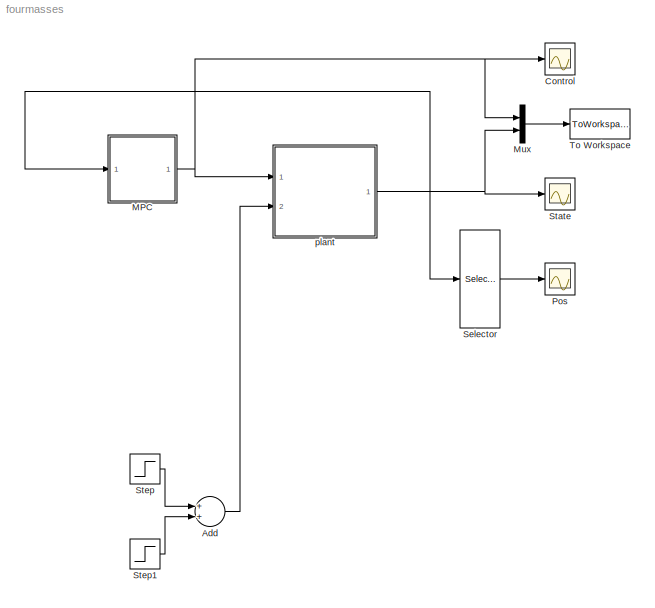
MODEL fourmasses
KIND model
BLOCK [Sum] Add
  InputSameDT = off
  OutDataTypeStr = Inherit: Inherit via internal rule
  Ports = [2, 1]
  SID = 215
  SaturateOnIntegerOverflow = off
BLOCK [Scope] Control
  DataFormat = StructureWithTime
  Floating = off
  NumInputPorts = 1
  Ports = [1]
  SID = 132
  SampleTime = 0
  SaveName = ScopeData1
  ShowLegends = off
  TimeRange = 60
  YMax = 0.5
  YMin = -0.5
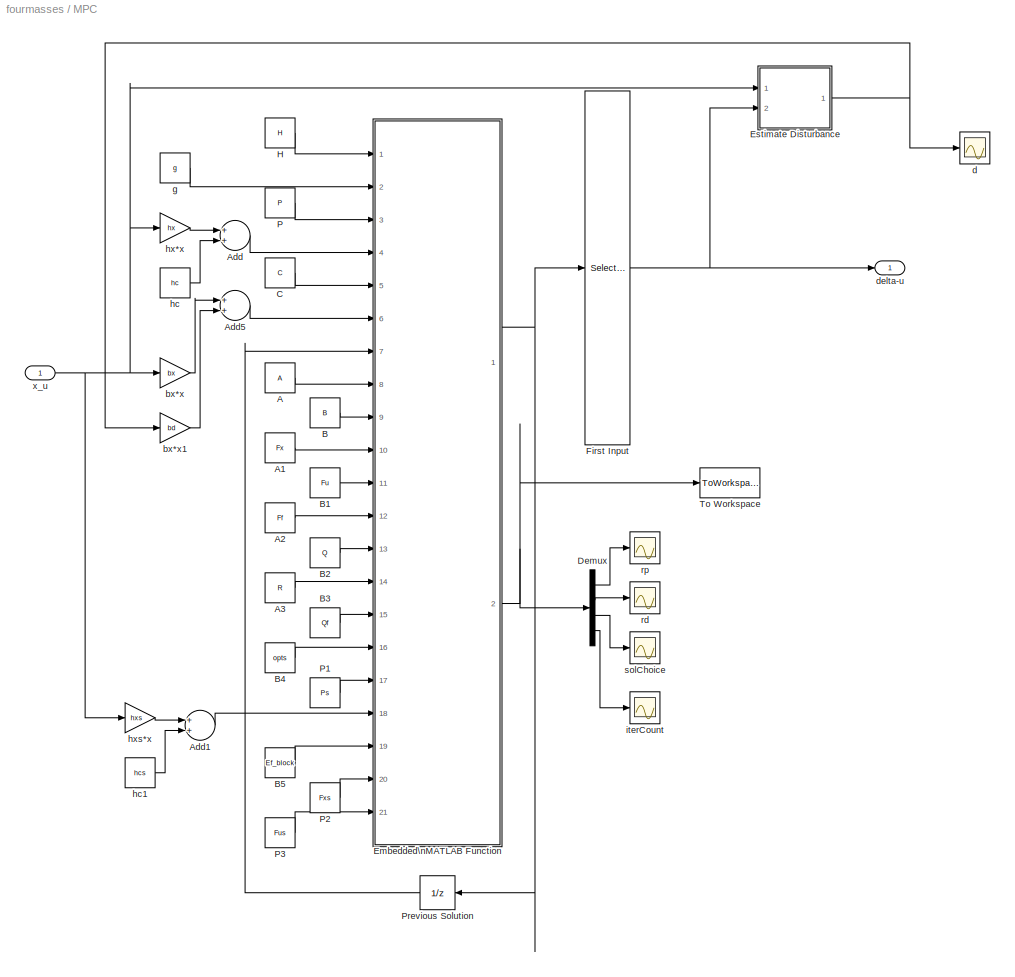
BLOCK [SubSystem] MPC
  FunctionWithSeparateData = off
  MaskHideContents = off
  MinAlgLoopOccurrences = off
  Opaque = off
  Ports = [1, 1]
  PropExecContextOutsideSubsystem = off
  RTWFcnNameOpts = Use subsystem name
  RTWFileNameOpts = Use subsystem name
  RTWSystemCode = Function
  RequestExecContextInheritance = off
  SID = 138
  SystemSampleTime = dt
  TreatAsAtomicUnit = on
BLOCK [Constant] MPC/A
  SID = 141
  Value = A
BLOCK [Constant] MPC/A1
  SID = 142
  Value = Fx
BLOCK [Constant] MPC/A2
  SID = 143
  Value = Ff
  VectorParams1D = off
BLOCK [Constant] MPC/A3
  SID = 144
  Value = R
BLOCK [Sum] MPC/Add
  InputSameDT = off
  OutDataTypeStr = Inherit: Inherit via internal rule
  Ports = [2, 1]
  SID = 145
  SaturateOnIntegerOverflow = off
BLOCK [Sum] MPC/Add1
  InputSameDT = off
  OutDataTypeStr = Inherit: Inherit via internal rule
  Ports = [2, 1]
  SID = 146
  SaturateOnIntegerOverflow = off
BLOCK [Sum] MPC/Add5
  InputSameDT = off
  OutDataTypeStr = Inherit: Inherit via internal rule
  Ports = [2, 1]
  SID = 148
  SaturateOnIntegerOverflow = off
BLOCK [Constant] MPC/B
  SID = 149
  Value = B
BLOCK [Constant] MPC/B1
  SID = 150
  Value = Fu
BLOCK [Constant] MPC/B2
  SID = 151
  Value = Q
BLOCK [Constant] MPC/B3
  SID = 152
  Value = Qf
BLOCK [Constant] MPC/B4
  SID = 153
  Value = opts
BLOCK [Constant] MPC/B5
  SID = 154
  Value = Ef_block
BLOCK [Constant] MPC/C
  SID = 155
  Value = C
BLOCK [Demux] MPC/Demux
  DisplayOption = bar
  Ports = [1, 4]
  SID = 172
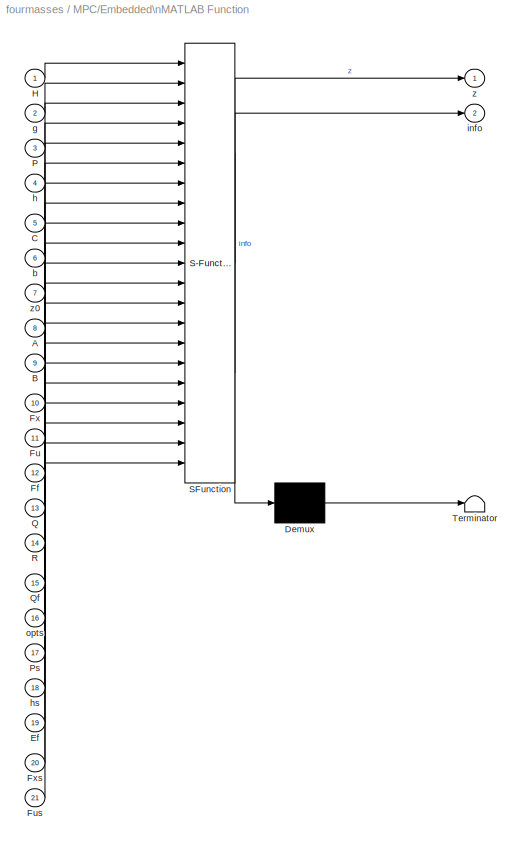
BLOCK [SubSystem] MPC/Embedded\nMATLAB Function
  ErrorFcn = Stateflow.Translate.translate
  FunctionWithSeparateData = off
  MaskHideContents = off
  MinAlgLoopOccurrences = off
  Opaque = off
  PermitHierarchicalResolution = ExplicitOnly
  Ports = [21, 2]
  PropExecContextOutsideSubsystem = off
  RTWFileNameOpts = Use subsystem name
  RTWSystemCode = Auto
  RequestExecContextInheritance = off
  SFBlockType = MATLAB Function
  SID = 173
  TreatAsAtomicUnit = on
BLOCK [Demux] MPC/Embedded\nMATLAB Function/ Demux 
  Outputs = 1
  Ports = [1, 1]
  SID = 173::36
BLOCK [S-Function] MPC/Embedded\nMATLAB Function/ SFunction 
  EnableBusSupport = on
  FunctionName = sf_sfun
  PortCounts = [21 3]
  Ports = [21, 3]
  SID = 173::35
  Tag = Stateflow S-Function fourmasses 2
BLOCK [Terminator] MPC/Embedded\nMATLAB Function/ Terminator 
  SID = 173::37
BLOCK [Inport] MPC/Embedded\nMATLAB Function/A
  IconDisplay = Port number
  Port = 8
  SID = 173::17
BLOCK [Inport] MPC/Embedded\nMATLAB Function/B
  IconDisplay = Port number
  Port = 9
  SID = 173::22
BLOCK [Inport] MPC/Embedded\nMATLAB Function/C
  IconDisplay = Port number
  Port = 5
  SID = 173::13
BLOCK [Inport] MPC/Embedded\nMATLAB Function/Ef
  IconDisplay = Port number
  Port = 19
  SID = 173::33
BLOCK [Inport] MPC/Embedded\nMATLAB Function/Ff
  IconDisplay = Port number
  Port = 12
  SID = 173::25
BLOCK [Inport] MPC/Embedded\nMATLAB Function/Fu
  IconDisplay = Port number
  Port = 11
  SID = 173::24
BLOCK [Inport] MPC/Embedded\nMATLAB Function/Fus
  IconDisplay = Port number
  Port = 21
  SID = 173::38
BLOCK [Inport] MPC/Embedded\nMATLAB Function/Fx
  IconDisplay = Port number
  Port = 10
  SID = 173::23
BLOCK [Inport] MPC/Embedded\nMATLAB Function/Fxs
  IconDisplay = Port number
  Port = 20
  SID = 173::34
BLOCK [Inport] MPC/Embedded\nMATLAB Function/H
  IconDisplay = Port number
  SID = 173::1
BLOCK [Inport] MPC/Embedded\nMATLAB Function/P
  IconDisplay = Port number
  Port = 3
  SID = 173::11
BLOCK [Inport] MPC/Embedded\nMATLAB Function/Ps
  IconDisplay = Port number
  Port = 17
  SID = 173::31
BLOCK [Inport] MPC/Embedded\nMATLAB Function/Q
  IconDisplay = Port number
  Port = 13
  SID = 173::26
BLOCK [Inport] MPC/Embedded\nMATLAB Function/Qf
  IconDisplay = Port number
  Port = 15
  SID = 173::28
BLOCK [Inport] MPC/Embedded\nMATLAB Function/R
  IconDisplay = Port number
  Port = 14
  SID = 173::27
BLOCK [Inport] MPC/Embedded\nMATLAB Function/b
  IconDisplay = Port number
  Port = 6
  SID = 173::14
BLOCK [Inport] MPC/Embedded\nMATLAB Function/g
  IconDisplay = Port number
  Port = 2
  SID = 173::10
BLOCK [Inport] MPC/Embedded\nMATLAB Function/h
  IconDisplay = Port number
  Port = 4
  SID = 173::12
BLOCK [Inport] MPC/Embedded\nMATLAB Function/hs
  IconDisplay = Port number
  Port = 18
  SID = 173::32
BLOCK [Outport] MPC/Embedded\nMATLAB Function/info
  IconDisplay = Port number
  Port = 2
  SID = 173::29
BLOCK [Inport] MPC/Embedded\nMATLAB Function/opts
  IconDisplay = Port number
  Port = 16
  SID = 173::30
BLOCK [Outport] MPC/Embedded\nMATLAB Function/z
  IconDisplay = Port number
  SID = 173::5
BLOCK [Inport] MPC/Embedded\nMATLAB Function/z0
  IconDisplay = Port number
  Port = 7
  SID = 173::15
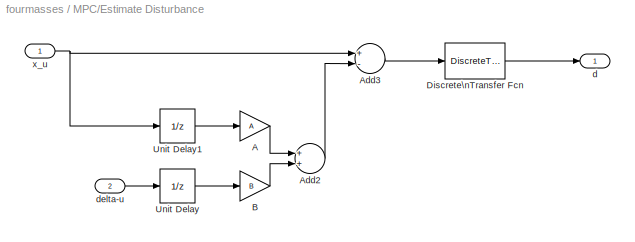
BLOCK [SubSystem] MPC/Estimate Disturbance
  FunctionWithSeparateData = off
  MaskHideContents = off
  MinAlgLoopOccurrences = off
  Opaque = off
  Ports = [2, 1]
  PropExecContextOutsideSubsystem = off
  RTWSystemCode = Auto
  RequestExecContextInheritance = off
  SID = 174
BLOCK [Gain] MPC/Estimate Disturbance/A
  Gain = A
  Multiplication = Matrix(K*u)
  OutDataTypeStr = Inherit: Inherit via internal rule
  ParamDataTypeStr = Inherit: Inherit via internal rule
  SID = 177
  SaturateOnIntegerOverflow = off
BLOCK [Sum] MPC/Estimate Disturbance/Add2
  InputSameDT = off
  OutDataTypeStr = Inherit: Inherit via internal rule
  Ports = [2, 1]
  SID = 178
  SaturateOnIntegerOverflow = off
BLOCK [Sum] MPC/Estimate Disturbance/Add3
  InputSameDT = off
  Inputs = +-
  OutDataTypeStr = Inherit: Inherit via internal rule
  Ports = [2, 1]
  SID = 179
  SaturateOnIntegerOverflow = off
BLOCK [Gain] MPC/Estimate Disturbance/B
  Gain = B
  Multiplication = Matrix(K*u)
  OutDataTypeStr = Inherit: Inherit via internal rule
  ParamDataTypeStr = Inherit: Inherit via internal rule
  SID = 180
  SaturateOnIntegerOverflow = off
BLOCK [DiscreteTransferFcn] MPC/Estimate Disturbance/Discrete\nTransfer Fcn
  Denominator = [1 -0.5]
  InputPortMap = u0
  Numerator = [0.5]
  Ports = [1, 1]
  SID = 181
BLOCK [UnitDelay] MPC/Estimate Disturbance/Unit Delay
  InputProcessing = Elements as channels (sample based)
  SID = 182
  SampleTime = -1
BLOCK [UnitDelay] MPC/Estimate Disturbance/Unit Delay1
  InputProcessing = Elements as channels (sample based)
  SID = 183
  SampleTime = -1
BLOCK [Outport] MPC/Estimate Disturbance/d
  IconDisplay = Port number
  SID = 184
BLOCK [Inport] MPC/Estimate Disturbance/delta-u
  IconDisplay = Port number
  Port = 2
  SID = 176
BLOCK [Inport] MPC/Estimate Disturbance/x_u
  IconDisplay = Port number
  SID = 175
BLOCK [Selector] MPC/First Input
  IndexOptions = Index vector (dialog)
  Indices = 1:2
  InputPortWidth = T*(n+m)
  OutputSizes = 1
  Ports = [1, 1]
  SID = 185
BLOCK [Constant] MPC/H
  SID = 186
  Value = H
BLOCK [Constant] MPC/P
  SID = 188
  Value = P
BLOCK [Constant] MPC/P1
  SID = 189
  Value = Ps
BLOCK [Constant] MPC/P2
  SID = 190
  Value = Fxs
BLOCK [Constant] MPC/P3
  SID = 191
  Value = Fus
BLOCK [UnitDelay] MPC/Previous Solution
  SID = 192
  SampleTime = -1
BLOCK [ToWorkspace] MPC/To Workspace
  MaxDataPoints = inf
  Ports = [1]
  SID = 193
  SampleTime = -1
  VariableName = info_out
BLOCK [Gain] MPC/bx*x
  Gain = bx
  Multiplication = Matrix(K*u)
  OutDataTypeStr = Inherit: Inherit via internal rule
  ParamDataTypeStr = Inherit: Inherit via internal rule
  SID = 194
  SaturateOnIntegerOverflow = off
BLOCK [Gain] MPC/bx*x1
  Gain = bd
  Multiplication = Matrix(K*u)
  OutDataTypeStr = Inherit: Inherit via internal rule
  ParamDataTypeStr = Inherit: Inherit via internal rule
  SID = 195
  SaturateOnIntegerOverflow = off
BLOCK [Scope] MPC/d
  DataFormat = StructureWithTime
  Floating = off
  NumInputPorts = 1
  Ports = [1]
  SID = 198
  SampleTime = 0
  SaveName = ScopeData6
  ShowLegends = off
  YMax = 0.25
  YMin = -0.025
  ZoomMode = yonly
BLOCK [Outport] MPC/delta-u
  IconDisplay = Port number
  SID = 210
BLOCK [Constant] MPC/g
  SID = 199
  Value = g
BLOCK [Constant] MPC/hc
  SID = 200
  Value = hc
BLOCK [Constant] MPC/hc1
  SID = 201
  Value = hcs
BLOCK [Gain] MPC/hx*x
  Gain = hx
  Multiplication = Matrix(K*u)
  OutDataTypeStr = Inherit: Inherit via internal rule
  ParamDataTypeStr = Inherit: Inherit via internal rule
  SID = 202
  SaturateOnIntegerOverflow = off
BLOCK [Gain] MPC/hxs*x
  Gain = hxs
  Multiplication = Matrix(K*u)
  OutDataTypeStr = Inherit: Inherit via internal rule
  ParamDataTypeStr = Inherit: Inherit via internal rule
  SID = 204
  SaturateOnIntegerOverflow = off
BLOCK [Scope] MPC/iterCount
  DataFormat = StructureWithTime
  Floating = off
  NumInputPorts = 1
  Ports = [1]
  SID = 205
  SampleTime = 0
  SaveName = ScopeData9
  ShowLegends = off
  TimeRange = 60
  YMax = 30
  YMin = 2.5
  ZoomMode = xonly
BLOCK [Scope] MPC/rd
  DataFormat = StructureWithTime
  Floating = off
  NumInputPorts = 1
  Ports = [1]
  SID = 206
  SampleTime = 0
  SaveName = ScopeData4
  ShowLegends = off
  YMax = 375
  YMin = 0
BLOCK [Scope] MPC/rp
  DataFormat = StructureWithTime
  Floating = off
  NumInputPorts = 1
  Ports = [1]
  SID = 207
  SampleTime = 0
  SaveName = ScopeData3
  ShowLegends = off
  YMax = 0.65
  YMin = -0.05
BLOCK [Scope] MPC/solChoice
  DataFormat = StructureWithTime
  Floating = off
  NumInputPorts = 1
  Ports = [1]
  SID = 208
  SampleTime = 0
  SaveName = ScopeData5
  ShowLegends = off
  YMax = 1.05
  YMin = 0.95
  ZoomMode = xonly
BLOCK [Inport] MPC/x_u
  IconDisplay = Port number
  SID = 139
BLOCK [Mux] Mux
  DisplayOption = bar
  Inputs = 2
  Ports = [2, 1]
  SID = 216
BLOCK [Scope] Pos
  DataFormat = StructureWithTime
  Floating = off
  NumInputPorts = 1
  Ports = [1]
  SID = 136
  SampleTime = 0
  SaveName = ScopeData2
  ShowLegends = off
  YMax = 0.8
  YMin = -0.7
  ZoomMode = yonly
BLOCK [Selector] Selector
  IndexOptions = Index vector (dialog)
  Indices = [1:4]
  InputPortWidth = 8
  OutputSizes = 1
  Ports = [1, 1]
  SID = 135
BLOCK [Scope] State
  DataFormat = StructureWithTime
  Floating = off
  NumInputPorts = 1
  Ports = [1]
  SID = 46
  SampleTime = 0
  ShowLegends = off
  YMax = 0.8
  YMin = -0.7
BLOCK [Step] Step
  After = [0.5;0;0;0]
  Before = zeros(4,1)
  SID = 137
  SampleTime = 0
  Time = 10
BLOCK [Step] Step1
  After = -[0.5;0;0;0]
  Before = zeros(4,1)
  SID = 214
  SampleTime = 0
  Time = 30
BLOCK [ToWorkspace] To Workspace
  MaxDataPoints = inf
  Ports = [1]
  SID = 217
  SampleTime = -1
  VariableName = simout
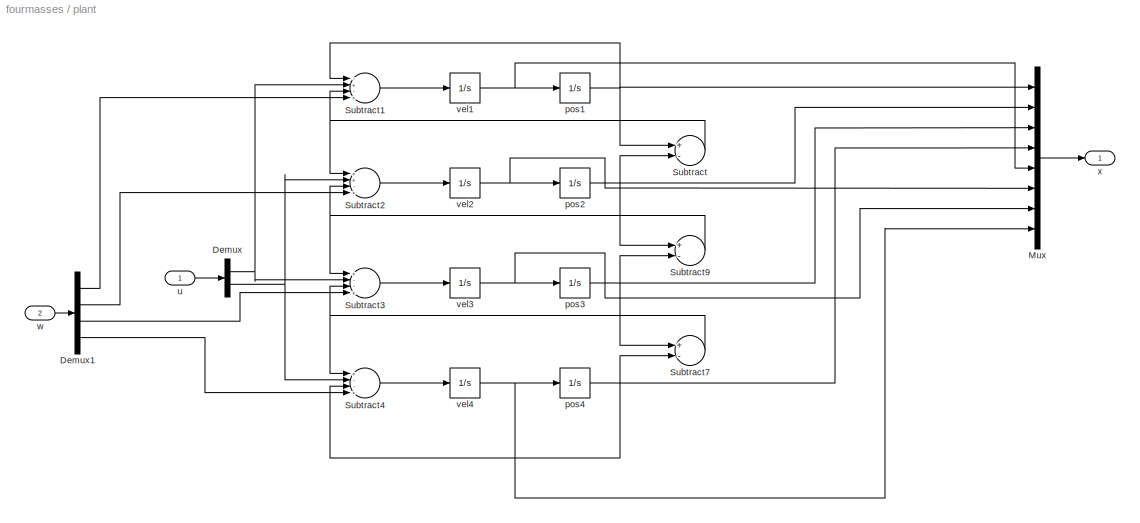
BLOCK [SubSystem] plant
  FunctionWithSeparateData = off
  MaskHideContents = off
  MinAlgLoopOccurrences = off
  Opaque = off
  Ports = [2, 1]
  PropExecContextOutsideSubsystem = off
  RTWSystemCode = Auto
  RequestExecContextInheritance = off
  SID = 26
BLOCK [Demux] plant/Demux
  DisplayOption = bar
  Outputs = 2
  Ports = [1, 2]
  SID = 37
BLOCK [Demux] plant/Demux1
  DisplayOption = bar
  Ports = [1, 4]
  SID = 48
BLOCK [Mux] plant/Mux
  DisplayOption = bar
  Inputs = 8
  Ports = [8, 1]
  SID = 39
BLOCK [Sum] plant/Subtract
  InputSameDT = off
  Inputs = +-
  OutDataTypeStr = Inherit: Inherit via internal rule
  Ports = [2, 1]
  SID = 13
  SaturateOnIntegerOverflow = off
BLOCK [Sum] plant/Subtract1
  InputSameDT = off
  Inputs = -+-+
  OutDataTypeStr = Inherit: Inherit via internal rule
  Ports = [4, 1]
  SID = 14
  SaturateOnIntegerOverflow = off
BLOCK [Sum] plant/Subtract2
  InputSameDT = off
  Inputs = ++-+
  OutDataTypeStr = Inherit: Inherit via internal rule
  Ports = [4, 1]
  SID = 15
  SaturateOnIntegerOverflow = off
BLOCK [Sum] plant/Subtract3
  InputSameDT = off
  Inputs = +--+
  OutDataTypeStr = Inherit: Inherit via internal rule
  Ports = [4, 1]
  SID = 16
  SaturateOnIntegerOverflow = off
BLOCK [Sum] plant/Subtract4
  InputSameDT = off
  Inputs = +--+
  OutDataTypeStr = Inherit: Inherit via internal rule
  Ports = [4, 1]
  SID = 17
  SaturateOnIntegerOverflow = off
BLOCK [Sum] plant/Subtract7
  InputSameDT = off
  Inputs = +-
  OutDataTypeStr = Inherit: Inherit via internal rule
  Ports = [2, 1]
  SID = 20
  SaturateOnIntegerOverflow = off
BLOCK [Sum] plant/Subtract9
  InputSameDT = off
  Inputs = +-
  OutDataTypeStr = Inherit: Inherit via internal rule
  Ports = [2, 1]
  SID = 22
  SaturateOnIntegerOverflow = off
BLOCK [Integrator] plant/pos1
  Ports = [1, 1]
  SID = 1
BLOCK [Integrator] plant/pos2
  Ports = [1, 1]
  SID = 3
BLOCK [Integrator] plant/pos3
  Ports = [1, 1]
  SID = 5
BLOCK [Integrator] plant/pos4
  Ports = [1, 1]
  SID = 7
BLOCK [Inport] plant/u
  IconDisplay = Port number
  SID = 38
BLOCK [Integrator] plant/vel1
  Ports = [1, 1]
  SID = 2
BLOCK [Integrator] plant/vel2
  Ports = [1, 1]
  SID = 4
BLOCK [Integrator] plant/vel3
  Ports = [1, 1]
  SID = 6
BLOCK [Integrator] plant/vel4
  Ports = [1, 1]
  SID = 8
BLOCK [Inport] plant/w
  IconDisplay = Port number
  Port = 2
  SID = 49
BLOCK [Outport] plant/x
  IconDisplay = Port number
  SID = 40
LINE Add:1 -> plant:2
LINE MPC/A1:1 -> MPC/Embedded\nMATLAB Function:10
LINE MPC/A2:1 -> MPC/Embedded\nMATLAB Function:12
LINE MPC/A3:1 -> MPC/Embedded\nMATLAB Function:14
LINE MPC/A:1 -> MPC/Embedded\nMATLAB Function:8
LINE MPC/Add1:1 -> MPC/Embedded\nMATLAB Function:18
LINE MPC/Add5:1 -> MPC/Embedded\nMATLAB Function:6
LINE MPC/Add:1 -> MPC/Embedded\nMATLAB Function:4
LINE MPC/B1:1 -> MPC/Embedded\nMATLAB Function:11
LINE MPC/B2:1 -> MPC/Embedded\nMATLAB Function:13
LINE MPC/B3:1 -> MPC/Embedded\nMATLAB Function:15
LINE MPC/B4:1 -> MPC/Embedded\nMATLAB Function:16
LINE MPC/B5:1 -> MPC/Embedded\nMATLAB Function:19
LINE MPC/B:1 -> MPC/Embedded\nMATLAB Function:9
LINE MPC/C:1 -> MPC/Embedded\nMATLAB Function:5
LINE MPC/Demux:1 -> MPC/rp:1
LINE MPC/Demux:2 -> MPC/rd:1
LINE MPC/Demux:3 -> MPC/solChoice:1
LINE MPC/Demux:4 -> MPC/iterCount:1
LINE MPC/Embedded\nMATLAB Function/ Demux :1 -> MPC/Embedded\nMATLAB Function/ Terminator :1
LINE MPC/Embedded\nMATLAB Function/ SFunction :1 -> MPC/Embedded\nMATLAB Function/ Demux :1
LINE MPC/Embedded\nMATLAB Function/ SFunction :2 -> MPC/Embedded\nMATLAB Function/z:1
LINE MPC/Embedded\nMATLAB Function/ SFunction :3 -> MPC/Embedded\nMATLAB Function/info:1
LINE MPC/Embedded\nMATLAB Function/A:1 -> MPC/Embedded\nMATLAB Function/ SFunction :8
LINE MPC/Embedded\nMATLAB Function/B:1 -> MPC/Embedded\nMATLAB Function/ SFunction :9
LINE MPC/Embedded\nMATLAB Function/C:1 -> MPC/Embedded\nMATLAB Function/ SFunction :5
LINE MPC/Embedded\nMATLAB Function/Ef:1 -> MPC/Embedded\nMATLAB Function/ SFunction :19
LINE MPC/Embedded\nMATLAB Function/Ff:1 -> MPC/Embedded\nMATLAB Function/ SFunction :12
LINE MPC/Embedded\nMATLAB Function/Fu:1 -> MPC/Embedded\nMATLAB Function/ SFunction :11
LINE MPC/Embedded\nMATLAB Function/Fus:1 -> MPC/Embedded\nMATLAB Function/ SFunction :21
LINE MPC/Embedded\nMATLAB Function/Fx:1 -> MPC/Embedded\nMATLAB Function/ SFunction :10
LINE MPC/Embedded\nMATLAB Function/Fxs:1 -> MPC/Embedded\nMATLAB Function/ SFunction :20
LINE MPC/Embedded\nMATLAB Function/H:1 -> MPC/Embedded\nMATLAB Function/ SFunction :1
LINE MPC/Embedded\nMATLAB Function/P:1 -> MPC/Embedded\nMATLAB Function/ SFunction :3
LINE MPC/Embedded\nMATLAB Function/Ps:1 -> MPC/Embedded\nMATLAB Function/ SFunction :17
LINE MPC/Embedded\nMATLAB Function/Q:1 -> MPC/Embedded\nMATLAB Function/ SFunction :13
LINE MPC/Embedded\nMATLAB Function/Qf:1 -> MPC/Embedded\nMATLAB Function/ SFunction :15
LINE MPC/Embedded\nMATLAB Function/R:1 -> MPC/Embedded\nMATLAB Function/ SFunction :14
LINE MPC/Embedded\nMATLAB Function/b:1 -> MPC/Embedded\nMATLAB Function/ SFunction :6
LINE MPC/Embedded\nMATLAB Function/g:1 -> MPC/Embedded\nMATLAB Function/ SFunction :2
LINE MPC/Embedded\nMATLAB Function/h:1 -> MPC/Embedded\nMATLAB Function/ SFunction :4
LINE MPC/Embedded\nMATLAB Function/hs:1 -> MPC/Embedded\nMATLAB Function/ SFunction :18
LINE MPC/Embedded\nMATLAB Function/opts:1 -> MPC/Embedded\nMATLAB Function/ SFunction :16
LINE MPC/Embedded\nMATLAB Function/z0:1 -> MPC/Embedded\nMATLAB Function/ SFunction :7
NET MPC/Embedded\nMATLAB Function:1 -> MPC/First Input:1, MPC/Previous Solution:1
NET MPC/Embedded\nMATLAB Function:2 -> MPC/Demux:1, MPC/To Workspace:1
LINE MPC/Estimate Disturbance/A:1 -> MPC/Estimate Disturbance/Add2:1
LINE MPC/Estimate Disturbance/Add2:1 -> MPC/Estimate Disturbance/Add3:2
LINE MPC/Estimate Disturbance/Add3:1 -> MPC/Estimate Disturbance/Discrete\nTransfer Fcn:1
LINE MPC/Estimate Disturbance/B:1 -> MPC/Estimate Disturbance/Add2:2
LINE MPC/Estimate Disturbance/Discrete\nTransfer Fcn:1 -> MPC/Estimate Disturbance/d:1
LINE MPC/Estimate Disturbance/Unit Delay1:1 -> MPC/Estimate Disturbance/A:1
LINE MPC/Estimate Disturbance/Unit Delay:1 -> MPC/Estimate Disturbance/B:1
LINE MPC/Estimate Disturbance/delta-u:1 -> MPC/Estimate Disturbance/Unit Delay:1
NET MPC/Estimate Disturbance/x_u:1 -> MPC/Estimate Disturbance/Add3:1, MPC/Estimate Disturbance/Unit Delay1:1
NET MPC/Estimate Disturbance:1 -> MPC/bx*x1:1, MPC/d:1
NET MPC/First Input:1 -> MPC/Estimate Disturbance:2, MPC/delta-u:1
LINE MPC/H:1 -> MPC/Embedded\nMATLAB Function:1
LINE MPC/P1:1 -> MPC/Embedded\nMATLAB Function:17
LINE MPC/P2:1 -> MPC/Embedded\nMATLAB Function:20
LINE MPC/P3:1 -> MPC/Embedded\nMATLAB Function:21
LINE MPC/P:1 -> MPC/Embedded\nMATLAB Function:3
LINE MPC/Previous Solution:1 -> MPC/Embedded\nMATLAB Function:7
LINE MPC/bx*x1:1 -> MPC/Add5:2
LINE MPC/bx*x:1 -> MPC/Add5:1
LINE MPC/g:1 -> MPC/Embedded\nMATLAB Function:2
LINE MPC/hc1:1 -> MPC/Add1:2
LINE MPC/hc:1 -> MPC/Add:2
LINE MPC/hx*x:1 -> MPC/Add:1
LINE MPC/hxs*x:1 -> MPC/Add1:1
NET MPC/x_u:1 -> MPC/Estimate Disturbance:1, MPC/bx*x:1, MPC/hx*x:1, MPC/hxs*x:1
NET MPC:1 -> Control:1, Mux:1, plant:1
LINE Mux:1 -> To Workspace:1
LINE Selector:1 -> Pos:1
LINE Step1:1 -> Add:2
LINE Step:1 -> Add:1
LINE plant/Demux1:1 -> plant/Subtract1:4
LINE plant/Demux1:2 -> plant/Subtract2:4
LINE plant/Demux1:3 -> plant/Subtract3:4
LINE plant/Demux1:4 -> plant/Subtract4:4
NET plant/Demux:1 -> plant/Subtract1:2, plant/Subtract3:2
NET plant/Demux:2 -> plant/Subtract2:2, plant/Subtract4:2
LINE plant/Mux:1 -> plant/x:1
LINE plant/Subtract1:1 -> plant/vel1:1
LINE plant/Subtract2:1 -> plant/vel2:1
LINE plant/Subtract3:1 -> plant/vel3:1
LINE plant/Subtract4:1 -> plant/vel4:1
NET plant/Subtract7:1 -> plant/Subtract3:3, plant/Subtract4:1
NET plant/Subtract9:1 -> plant/Subtract2:3, plant/Subtract3:1
NET plant/Subtract:1 -> plant/Subtract1:3, plant/Subtract2:1
NET plant/pos1:1 -> plant/Mux:1, plant/Subtract1:1, plant/Subtract:1
NET plant/pos2:1 -> plant/Mux:2, plant/Subtract9:1, plant/Subtract:2
NET plant/pos3:1 -> plant/Mux:3, plant/Subtract7:1, plant/Subtract9:2
NET plant/pos4:1 -> plant/Mux:4, plant/Subtract4:3, plant/Subtract7:2
LINE plant/u:1 -> plant/Demux:1
NET plant/vel1:1 -> plant/Mux:5, plant/pos1:1
NET plant/vel2:1 -> plant/Mux:6, plant/pos2:1
NET plant/vel3:1 -> plant/Mux:7, plant/pos3:1
NET plant/vel4:1 -> plant/Mux:8, plant/pos4:1
LINE plant/w:1 -> plant/Demux1:1
NET plant:1 -> MPC:1, Mux:2, Selector:1, State:1
note: NET lines group one-source signal fan-out (src -> all destinations, sorted); 1:1 wires keep LINE
CHART MPC/Embedded\nMATLAB Function states=1 transitions=1
  STATE_LABEL 'eML_blk_kernel()'
